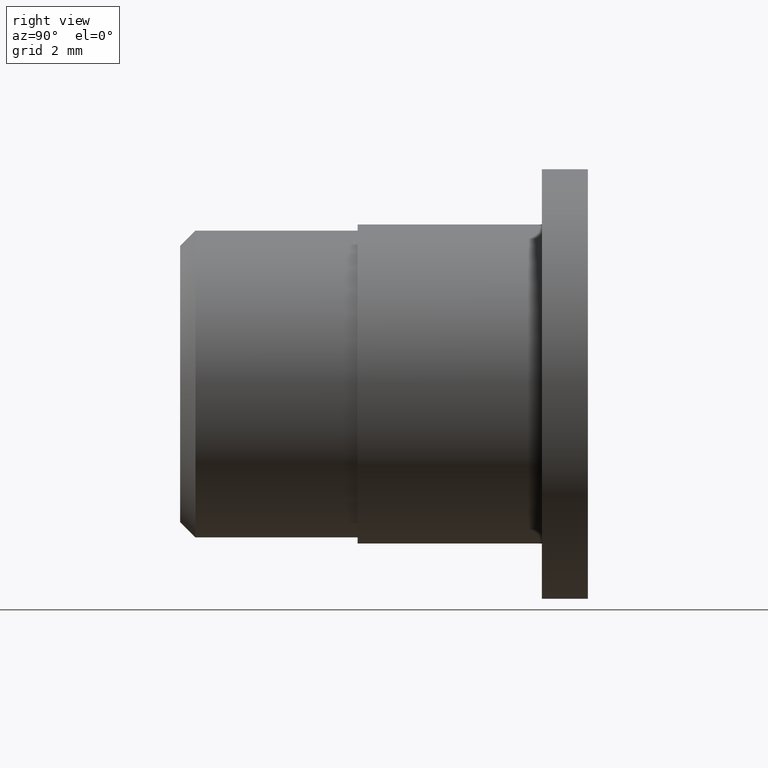
[diagram: clean part render]
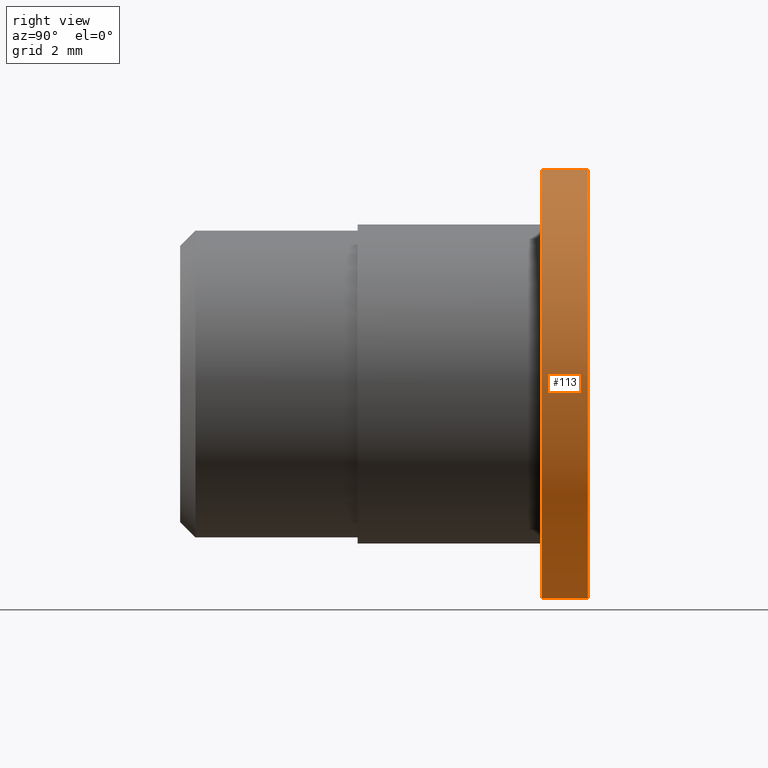
[diagram: same view with one face highlighted and labeled with its STEP entity id]
A machine part, right view. The second image highlights one B-rep face of the part: STEP entity #113.
In plain terms, the highlighted cylindrical surface (bore or boss wall) has radius 7 mm, axis along (0, 1, 0).
Its self-contained STEP definition (entity closure, byte-faithful):
#19=CYLINDRICAL_SURFACE('',#133,7.);
#28=FACE_BOUND('',#55,.T.);
#37=FACE_OUTER_BOUND('',#54,.T.);
#54=EDGE_LOOP('',(#99));
#55=EDGE_LOOP('',(#100));
#56=CIRCLE('',#117,7.);
#64=CIRCLE('',#132,7.);
#65=VERTEX_POINT('',#174);
#73=VERTEX_POINT('',#197);
#74=EDGE_CURVE('',#65,#65,#56,.T.);
#82=EDGE_CURVE('',#73,#73,#64,.T.);
#99=ORIENTED_EDGE('',*,*,#74,.F.);
#100=ORIENTED_EDGE('',*,*,#82,.T.);
#113=ADVANCED_FACE('',(#37,#28),#19,.T.);
#117=AXIS2_PLACEMENT_3D('',#175,#138,#139);
#132=AXIS2_PLACEMENT_3D('',#198,#168,#169);
#133=AXIS2_PLACEMENT_3D('',#199,#170,#171);
#138=DIRECTION('center_axis',(0.,1.,0.));
#139=DIRECTION('ref_axis',(-1.,0.,0.));
#168=DIRECTION('center_axis',(0.,1.,0.));
#169=DIRECTION('ref_axis',(-1.,0.,0.));
#170=DIRECTION('center_axis',(0.,1.,0.));
#171=DIRECTION('ref_axis',(-1.,0.,0.));
#174=CARTESIAN_POINT('',(-7.,14.,0.));
#175=CARTESIAN_POINT('Origin',(0.,14.,0.));
#197=CARTESIAN_POINT('',(-7.,12.5,0.));
#198=CARTESIAN_POINT('Origin',(0.,12.5,0.));
#199=CARTESIAN_POINT('Origin',(0.,13.25,0.));